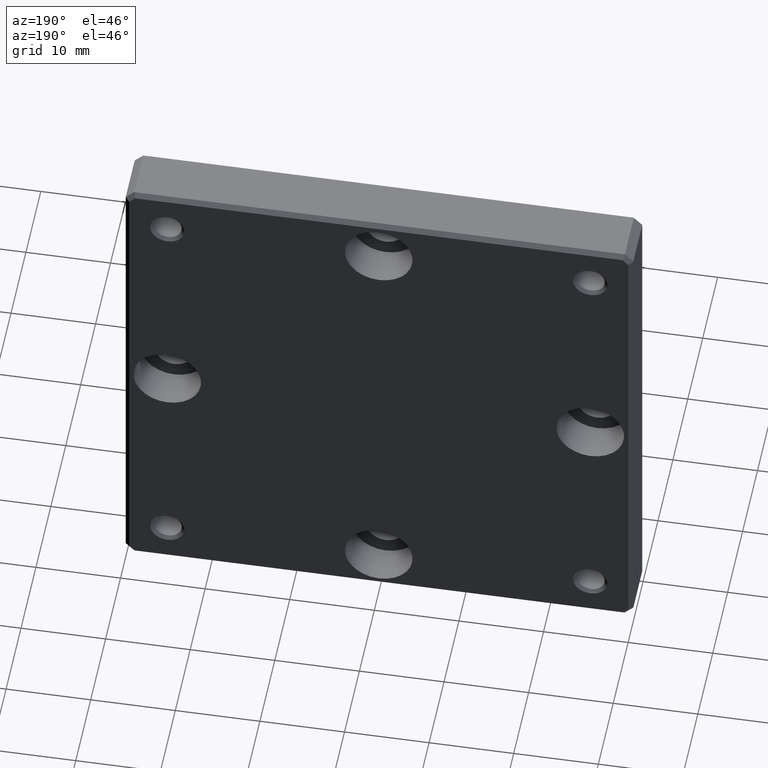
[diagram: clean part render]
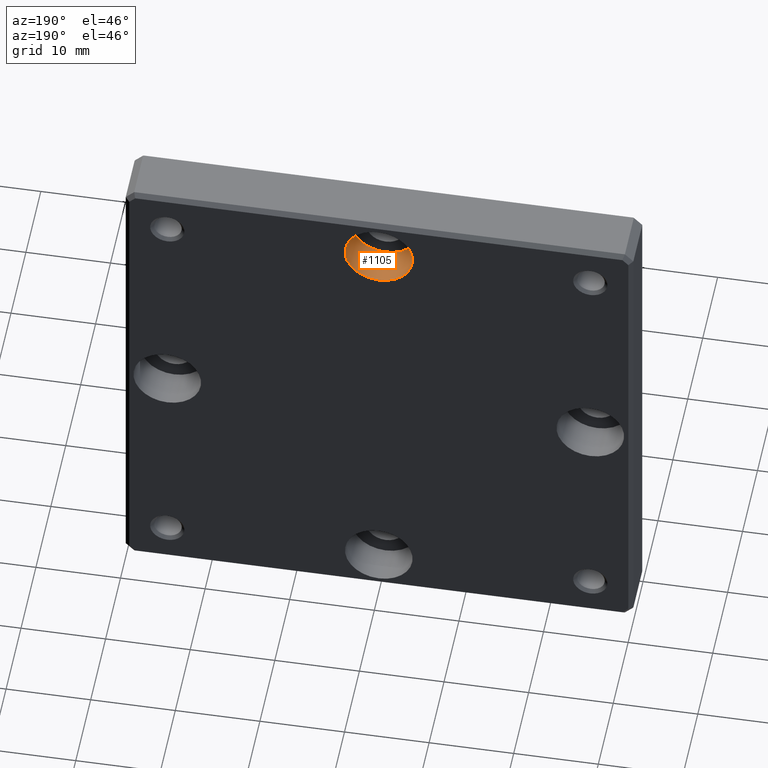
[diagram: same view with one face highlighted and labeled with its STEP entity id]
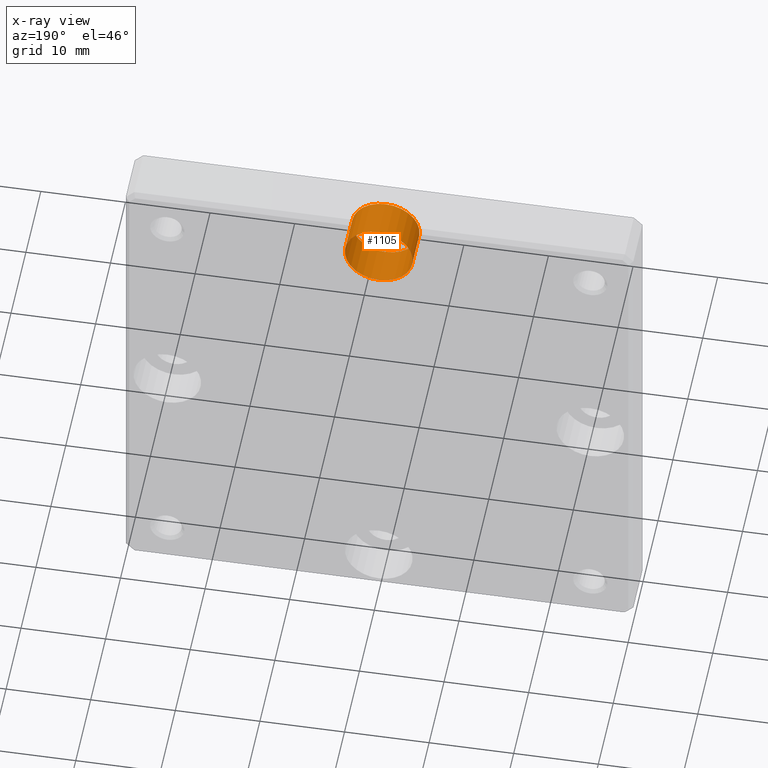
[diagram: x-ray of the same camera — body ghosted, the highlighted face saturated]
A machine part, auxiliary view. The second image highlights one B-rep face of the part: STEP entity #1105.
The next image is the same camera in x-ray: the body ghosted, the highlighted face saturated — about 0% of this face is hidden behind the body in this view.
In plain terms, the highlighted cylindrical surface (bore or boss wall) has radius 4 mm, axis along (-0, 1, -0).
Its self-contained STEP definition (entity closure, byte-faithful):
#64 = DIRECTION ( 'NONE',  ( 0.000000000000000000, 0.000000000000000000, 1.000000000000000000 ) ) ;
#67 = ORIENTED_EDGE ( 'NONE', *, *, #203, .T. ) ;
#87 = DIRECTION ( 'NONE',  ( -0.000000000000000000, 1.000000000000000000, -0.000000000000000000 ) ) ;
#159 = CIRCLE ( 'NONE', #881, 4.000000000000000000 ) ;
#168 = CARTESIAN_POINT ( 'NONE',  ( 0.000000000000000000, 2.400000000000000355, 29.00000000000000355 ) ) ;
#203 = EDGE_CURVE ( 'NONE', #441, #441, #1192, .T. ) ;
#210 = AXIS2_PLACEMENT_3D ( 'NONE', #1116, #227, #541 ) ;
#213 = CYLINDRICAL_SURFACE ( 'NONE', #414, 4.000000000000000000 ) ;
#226 = VERTEX_POINT ( 'NONE', #168 ) ;
#227 = DIRECTION ( 'NONE',  ( -0.000000000000000000, 1.000000000000000000, -0.000000000000000000 ) ) ;
#348 = CARTESIAN_POINT ( 'NONE',  ( 0.000000000000000000, 7.000000000000000000, 29.00000000000000355 ) ) ;
#414 = AXIS2_PLACEMENT_3D ( 'NONE', #1095, #87, #1265 ) ;
#441 = VERTEX_POINT ( 'NONE', #348 ) ;
#501 = ORIENTED_EDGE ( 'NONE', *, *, #962, .F. ) ;
#508 = EDGE_LOOP ( 'NONE', ( #501 ) ) ;
#541 = DIRECTION ( 'NONE',  ( 0.000000000000000000, 0.000000000000000000, 1.000000000000000000 ) ) ;
#576 = EDGE_LOOP ( 'NONE', ( #67 ) ) ;
#696 = FACE_OUTER_BOUND ( 'NONE', #576, .T. ) ;
#706 = FACE_OUTER_BOUND ( 'NONE', #508, .T. ) ;
#865 = DIRECTION ( 'NONE',  ( -0.000000000000000000, 1.000000000000000000, -0.000000000000000000 ) ) ;
#881 = AXIS2_PLACEMENT_3D ( 'NONE', #1132, #865, #64 ) ;
#962 = EDGE_CURVE ( 'NONE', #226, #226, #159, .T. ) ;
#1095 = CARTESIAN_POINT ( 'NONE',  ( 0.000000000000000000, 7.000000000000000000, 25.00000000000000355 ) ) ;
#1105 = ADVANCED_FACE ( 'NONE', ( #706, #696 ), #213, .F. ) ;
#1116 = CARTESIAN_POINT ( 'NONE',  ( 0.000000000000000000, 7.000000000000000000, 25.00000000000000355 ) ) ;
#1132 = CARTESIAN_POINT ( 'NONE',  ( 0.000000000000000000, 2.400000000000000355, 25.00000000000000355 ) ) ;
#1192 = CIRCLE ( 'NONE', #210, 4.000000000000000000 ) ;
#1265 = DIRECTION ( 'NONE',  ( 0.000000000000000000, 0.000000000000000000, 1.000000000000000000 ) ) ;